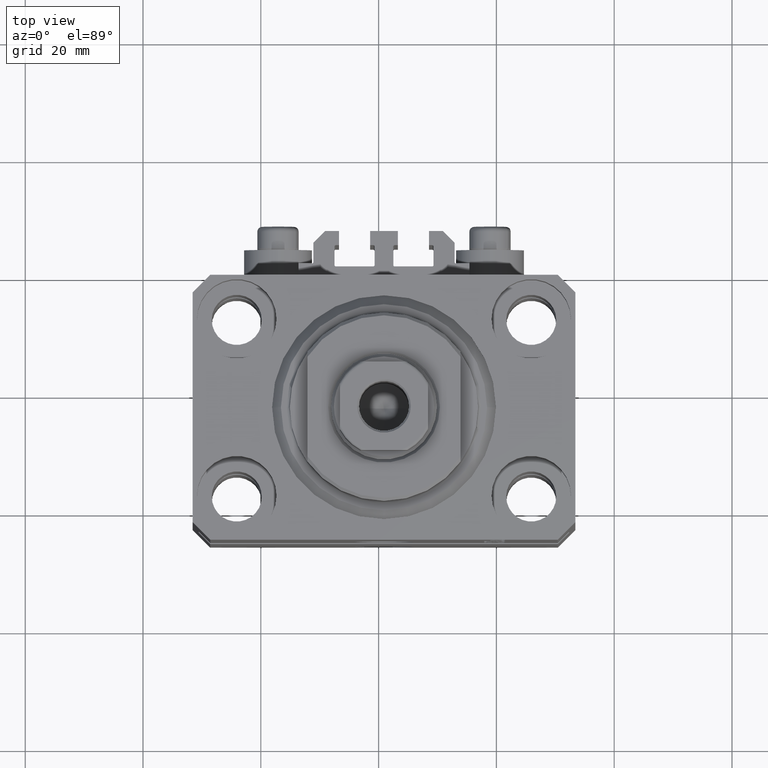
[diagram: clean part render]
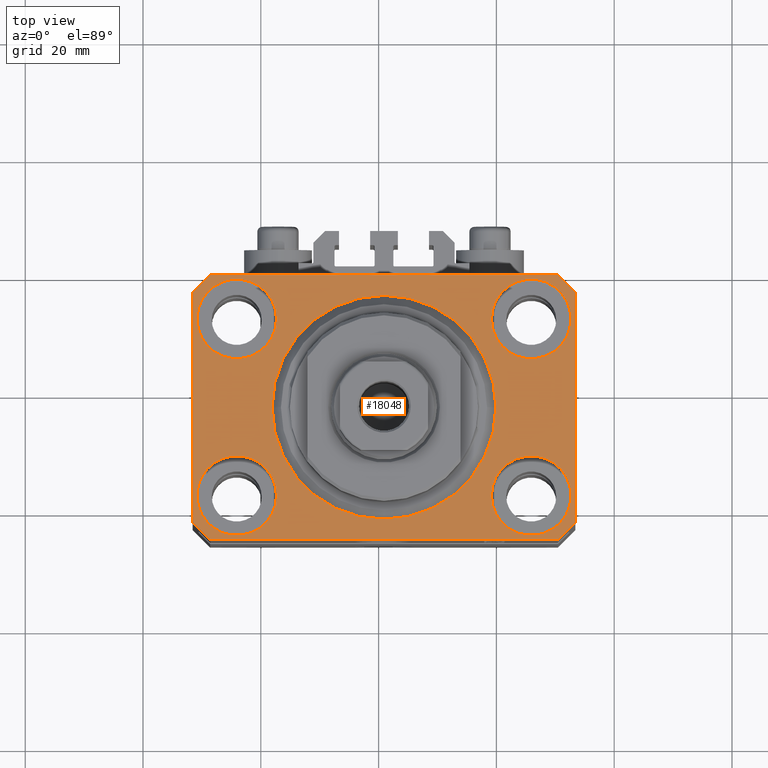
[diagram: same view with one face highlighted and labeled with its STEP entity id]
A machine part, top view. The second image highlights one B-rep face of the part: STEP entity #18048.
In plain terms, the highlighted planar face has unit normal (0, 0, 1).
Its self-contained STEP definition (entity closure, byte-faithful):
#32 = DIRECTION ( 'NONE',  ( 1.000000000000000000, 0.000000000000000000, 0.000000000000000000 ) ) ;
#367 = CARTESIAN_POINT ( 'NONE',  ( 29.49999999999707967, 22.49999999999951328, 0.000000000000000000 ) ) ;
#540 = ORIENTED_EDGE ( 'NONE', *, *, #32196, .T. ) ;
#601 = CARTESIAN_POINT ( 'NONE',  ( 19.00000000000000000, 0.000000000000000000, 0.000000000000000000 ) ) ;
#865 = EDGE_CURVE ( 'NONE', #3553, #43938, #35363, .T. ) ;
#1340 = VERTEX_POINT ( 'NONE', #7825 ) ;
#1629 = VERTEX_POINT ( 'NONE', #11112 ) ;
#2116 = VERTEX_POINT ( 'NONE', #29087 ) ;
#2663 = DIRECTION ( 'NONE',  ( 0.000000000000000000, -1.000000000000000000, 0.000000000000000000 ) ) ;
#2782 = DIRECTION ( 'NONE',  ( 1.000000000000000000, 0.000000000000000000, 0.000000000000000000 ) ) ;
#2968 = EDGE_CURVE ( 'NONE', #33075, #34157, #8736, .T. ) ;
#3211 = CARTESIAN_POINT ( 'NONE',  ( 29.49999999999650413, -22.49999999999949196, 0.000000000000000000 ) ) ;
#3477 = ORIENTED_EDGE ( 'NONE', *, *, #13586, .F. ) ;
#3553 = VERTEX_POINT ( 'NONE', #22976 ) ;
#3564 = CARTESIAN_POINT ( 'NONE',  ( -32.49999999999650413, -19.49999999999949907, 0.000000000000000000 ) ) ;
#4499 = VERTEX_POINT ( 'NONE', #22984 ) ;
#4962 = ORIENTED_EDGE ( 'NONE', *, *, #37915, .F. ) ;
#5008 = CIRCLE ( 'NONE', #42346, 6.750000000022533087 ) ;
#5142 = CIRCLE ( 'NONE', #41694, 6.749999999977465137 ) ;
#5403 = VERTEX_POINT ( 'NONE', #23043 ) ;
#5609 = VECTOR ( 'NONE', #2663, 1000.000000000000000 ) ;
#5690 = CIRCLE ( 'NONE', #31598, 19.00000000000000000 ) ;
#6157 = LINE ( 'NONE', #22946, #8437 ) ;
#6290 = CIRCLE ( 'NONE', #46705, 6.749999999958452790 ) ;
#6680 = VECTOR ( 'NONE', #20796, 1000.000000000000114 ) ;
#6725 = CARTESIAN_POINT ( 'NONE',  ( 29.49999999999650413, -22.49999999999949196, 0.000000000000000000 ) ) ;
#6874 = ORIENTED_EDGE ( 'NONE', *, *, #36098, .F. ) ;
#7216 = EDGE_CURVE ( 'NONE', #38874, #15450, #32822, .T. ) ;
#7422 = ORIENTED_EDGE ( 'NONE', *, *, #46067, .T. ) ;
#7825 = CARTESIAN_POINT ( 'NONE',  ( -31.75000000002253842, 15.00000000000000000, 0.000000000000000000 ) ) ;
#8437 = VECTOR ( 'NONE', #28109, 1000.000000000000000 ) ;
#8736 = CIRCLE ( 'NONE', #12555, 6.750000000041541881 ) ;
#8756 = DIRECTION ( 'NONE',  ( 0.000000000000000000, 0.000000000000000000, 1.000000000000000000 ) ) ;
#9658 = AXIS2_PLACEMENT_3D ( 'NONE', #11072, #17779, #25399 ) ;
#9745 = CARTESIAN_POINT ( 'NONE',  ( 32.49999999999651124, -19.49999999999949196, 0.000000000000000000 ) ) ;
#10374 = FACE_BOUND ( 'NONE', #46874, .T. ) ;
#10494 = AXIS2_PLACEMENT_3D ( 'NONE', #21839, #33297, #18019 ) ;
#10869 = DIRECTION ( 'NONE',  ( -1.000000000000000000, -2.352167425053553784E-16, 0.000000000000000000 ) ) ;
#11072 = CARTESIAN_POINT ( 'NONE',  ( 0.000000000000000000, 0.000000000000000000, 0.000000000000000000 ) ) ;
#11074 = ORIENTED_EDGE ( 'NONE', *, *, #7216, .T. ) ;
#11112 = CARTESIAN_POINT ( 'NONE',  ( 32.49999999999702993, 19.49999999999945999, 0.000000000000000000 ) ) ;
#11776 = CIRCLE ( 'NONE', #20190, 6.750000000041541881 ) ;
#11971 = ORIENTED_EDGE ( 'NONE', *, *, #43411, .F. ) ;
#12323 = EDGE_CURVE ( 'NONE', #1340, #37558, #5008, .T. ) ;
#12362 = ORIENTED_EDGE ( 'NONE', *, *, #865, .T. ) ;
#12555 = AXIS2_PLACEMENT_3D ( 'NONE', #27988, #31815, #39198 ) ;
#13251 = ORIENTED_EDGE ( 'NONE', *, *, #13440, .F. ) ;
#13405 = VECTOR ( 'NONE', #28749, 1000.000000000000000 ) ;
#13440 = EDGE_CURVE ( 'NONE', #34157, #33075, #11776, .T. ) ;
#13586 = EDGE_CURVE ( 'NONE', #2116, #33602, #5690, .T. ) ;
#13995 = CARTESIAN_POINT ( 'NONE',  ( 29.49999999999707967, 22.49999999999951328, 0.000000000000000000 ) ) ;
#14139 = AXIS2_PLACEMENT_3D ( 'NONE', #45763, #35959, #2782 ) ;
#14230 = DIRECTION ( 'NONE',  ( 0.000000000000000000, 0.000000000000000000, 1.000000000000000000 ) ) ;
#14541 = EDGE_LOOP ( 'NONE', ( #11971, #6874 ) ) ;
#14913 = ORIENTED_EDGE ( 'NONE', *, *, #42311, .F. ) ;
#15450 = VERTEX_POINT ( 'NONE', #9745 ) ;
#15936 = VECTOR ( 'NONE', #21031, 1000.000000000000000 ) ;
#16018 = CARTESIAN_POINT ( 'NONE',  ( -31.75000000004154899, -15.00000000000000000, 0.000000000000000000 ) ) ;
#16593 = CIRCLE ( 'NONE', #23453, 6.749999999977465137 ) ;
#16930 = ORIENTED_EDGE ( 'NONE', *, *, #42679, .T. ) ;
#17495 = CIRCLE ( 'NONE', #22051, 19.00000000000000000 ) ;
#17779 = DIRECTION ( 'NONE',  ( 0.000000000000000000, 0.000000000000000000, 1.000000000000000000 ) ) ;
#18019 = DIRECTION ( 'NONE',  ( 1.000000000000000000, 0.000000000000000000, 0.000000000000000000 ) ) ;
#18048 = ADVANCED_FACE ( 'NONE', ( #25643, #10374, #28984, #25881, #21602, #44011 ), #43763, .T. ) ;
#19783 = EDGE_CURVE ( 'NONE', #26775, #31788, #5142, .T. ) ;
#19938 = DIRECTION ( 'NONE',  ( 1.000000000000000000, 0.000000000000000000, 0.000000000000000000 ) ) ;
#20190 = AXIS2_PLACEMENT_3D ( 'NONE', #21414, #14230, #27854 ) ;
#20796 = DIRECTION ( 'NONE',  ( 0.7071067811865474617, -0.7071067811865474617, 0.000000000000000000 ) ) ;
#21031 = DIRECTION ( 'NONE',  ( 1.000000000000000000, 1.176083712526788232E-16, 0.000000000000000000 ) ) ;
#21414 = CARTESIAN_POINT ( 'NONE',  ( -25.00000000000000355, -15.00000000000000000, 0.000000000000000000 ) ) ;
#21602 = FACE_BOUND ( 'NONE', #42133, .T. ) ;
#21635 = LINE ( 'NONE', #13995, #45172 ) ;
#21839 = CARTESIAN_POINT ( 'NONE',  ( 24.99999999999999645, 15.00000000000000888, 0.000000000000000000 ) ) ;
#21872 = CARTESIAN_POINT ( 'NONE',  ( -29.49999999999650413, 22.49999999999949907, 0.000000000000000000 ) ) ;
#22051 = AXIS2_PLACEMENT_3D ( 'NONE', #45759, #8756, #41213 ) ;
#22108 = DIRECTION ( 'NONE',  ( 0.000000000000000000, 0.000000000000000000, 1.000000000000000000 ) ) ;
#22657 = DIRECTION ( 'NONE',  ( -0.7071067811865352493, 0.7071067811865597852, 0.000000000000000000 ) ) ;
#22701 = CIRCLE ( 'NONE', #10494, 6.749999999958452790 ) ;
#22946 = CARTESIAN_POINT ( 'NONE',  ( 32.49999999999651124, -19.49999999999949196, 0.000000000000000000 ) ) ;
#22976 = CARTESIAN_POINT ( 'NONE',  ( -32.49999999999650413, 19.49999999999949907, 0.000000000000000000 ) ) ;
#22984 = CARTESIAN_POINT ( 'NONE',  ( 18.25000000004154543, 15.00000000000000888, 0.000000000000000000 ) ) ;
#23043 = CARTESIAN_POINT ( 'NONE',  ( 31.74999999995845101, 15.00000000000000888, 0.000000000000000000 ) ) ;
#23072 = CARTESIAN_POINT ( 'NONE',  ( 18.25000000002253842, -15.00000000000000000, 0.000000000000000000 ) ) ;
#23453 = AXIS2_PLACEMENT_3D ( 'NONE', #24250, #31192, #45957 ) ;
#24250 = CARTESIAN_POINT ( 'NONE',  ( 25.00000000000000355, -15.00000000000000000, 0.000000000000000000 ) ) ;
#24440 = EDGE_CURVE ( 'NONE', #33602, #2116, #17495, .T. ) ;
#25399 = DIRECTION ( 'NONE',  ( 1.000000000000000000, 0.000000000000000000, -0.000000000000000000 ) ) ;
#25518 = CARTESIAN_POINT ( 'NONE',  ( 32.49999999999702993, 19.49999999999945999, 0.000000000000000000 ) ) ;
#25643 = FACE_BOUND ( 'NONE', #33392, .T. ) ;
#25843 = DIRECTION ( 'NONE',  ( 1.000000000000000000, 0.000000000000000000, 0.000000000000000000 ) ) ;
#25881 = FACE_BOUND ( 'NONE', #36525, .T. ) ;
#26775 = VERTEX_POINT ( 'NONE', #23072 ) ;
#27287 = ORIENTED_EDGE ( 'NONE', *, *, #19783, .F. ) ;
#27492 = VERTEX_POINT ( 'NONE', #35020 ) ;
#27615 = VERTEX_POINT ( 'NONE', #367 ) ;
#27854 = DIRECTION ( 'NONE',  ( 1.000000000000000000, 0.000000000000000000, 0.000000000000000000 ) ) ;
#27988 = CARTESIAN_POINT ( 'NONE',  ( -25.00000000000000355, -15.00000000000000000, 0.000000000000000000 ) ) ;
#28109 = DIRECTION ( 'NONE',  ( 1.334402673828349134E-14, 1.000000000000000000, 0.000000000000000000 ) ) ;
#28642 = LINE ( 'NONE', #43183, #15936 ) ;
#28749 = DIRECTION ( 'NONE',  ( 0.7071067811865483499, 0.7071067811865466846, 0.000000000000000000 ) ) ;
#28984 = FACE_BOUND ( 'NONE', #14541, .T. ) ;
#29087 = CARTESIAN_POINT ( 'NONE',  ( -19.00000000000000000, 2.326828918379970970E-15, 0.000000000000000000 ) ) ;
#29825 = ORIENTED_EDGE ( 'NONE', *, *, #2968, .F. ) ;
#30505 = EDGE_CURVE ( 'NONE', #46618, #3553, #36192, .T. ) ;
#30732 = CARTESIAN_POINT ( 'NONE',  ( -18.24999999995846167, -15.00000000000000000, 0.000000000000000000 ) ) ;
#31192 = DIRECTION ( 'NONE',  ( 0.000000000000000000, 0.000000000000000000, 1.000000000000000000 ) ) ;
#31598 = AXIS2_PLACEMENT_3D ( 'NONE', #40230, #22108, #40462 ) ;
#31640 = ORIENTED_EDGE ( 'NONE', *, *, #30505, .T. ) ;
#31788 = VERTEX_POINT ( 'NONE', #44006 ) ;
#31815 = DIRECTION ( 'NONE',  ( 0.000000000000000000, 0.000000000000000000, 1.000000000000000000 ) ) ;
#32196 = EDGE_CURVE ( 'NONE', #15450, #1629, #6157, .T. ) ;
#32448 = CIRCLE ( 'NONE', #14139, 6.750000000022533087 ) ;
#32822 = LINE ( 'NONE', #3211, #13405 ) ;
#33075 = VERTEX_POINT ( 'NONE', #16018 ) ;
#33297 = DIRECTION ( 'NONE',  ( 0.000000000000000000, 0.000000000000000000, 1.000000000000000000 ) ) ;
#33369 = VECTOR ( 'NONE', #22657, 1000.000000000000000 ) ;
#33392 = EDGE_LOOP ( 'NONE', ( #13251, #29825 ) ) ;
#33602 = VERTEX_POINT ( 'NONE', #601 ) ;
#34157 = VERTEX_POINT ( 'NONE', #30732 ) ;
#35020 = CARTESIAN_POINT ( 'NONE',  ( -29.49999999999650413, -22.49999999999949907, 0.000000000000000000 ) ) ;
#35363 = LINE ( 'NONE', #41818, #5609 ) ;
#35573 = EDGE_CURVE ( 'NONE', #27615, #46618, #21635, .T. ) ;
#35959 = DIRECTION ( 'NONE',  ( 0.000000000000000000, 0.000000000000000000, 1.000000000000000000 ) ) ;
#36070 = CARTESIAN_POINT ( 'NONE',  ( 24.99999999999999645, 15.00000000000000888, 0.000000000000000000 ) ) ;
#36098 = EDGE_CURVE ( 'NONE', #4499, #5403, #6290, .T. ) ;
#36105 = CARTESIAN_POINT ( 'NONE',  ( -32.49999999999650413, -19.49999999999949907, 0.000000000000000000 ) ) ;
#36192 = LINE ( 'NONE', #21872, #39655 ) ;
#36525 = EDGE_LOOP ( 'NONE', ( #4962, #45789 ) ) ;
#36748 = ORIENTED_EDGE ( 'NONE', *, *, #24440, .F. ) ;
#36765 = CARTESIAN_POINT ( 'NONE',  ( -18.24999999997747224, 15.00000000000000000, 0.000000000000000000 ) ) ;
#36807 = CARTESIAN_POINT ( 'NONE',  ( -29.49999999999650413, 22.49999999999949907, 0.000000000000000000 ) ) ;
#37558 = VERTEX_POINT ( 'NONE', #36765 ) ;
#37915 = EDGE_CURVE ( 'NONE', #37558, #1340, #32448, .T. ) ;
#38874 = VERTEX_POINT ( 'NONE', #6725 ) ;
#38999 = DIRECTION ( 'NONE',  ( 0.000000000000000000, 0.000000000000000000, 1.000000000000000000 ) ) ;
#39150 = LINE ( 'NONE', #3564, #6680 ) ;
#39198 = DIRECTION ( 'NONE',  ( 1.000000000000000000, 0.000000000000000000, 0.000000000000000000 ) ) ;
#39655 = VECTOR ( 'NONE', #46234, 1000.000000000000114 ) ;
#40074 = LINE ( 'NONE', #25518, #33369 ) ;
#40154 = DIRECTION ( 'NONE',  ( 0.000000000000000000, 0.000000000000000000, 1.000000000000000000 ) ) ;
#40230 = CARTESIAN_POINT ( 'NONE',  ( 0.000000000000000000, 0.000000000000000000, 0.000000000000000000 ) ) ;
#40462 = DIRECTION ( 'NONE',  ( 1.000000000000000000, 0.000000000000000000, 0.000000000000000000 ) ) ;
#40859 = CARTESIAN_POINT ( 'NONE',  ( 25.00000000000000355, -15.00000000000000000, 0.000000000000000000 ) ) ;
#41213 = DIRECTION ( 'NONE',  ( 1.000000000000000000, 0.000000000000000000, 0.000000000000000000 ) ) ;
#41694 = AXIS2_PLACEMENT_3D ( 'NONE', #40859, #40154, #25843 ) ;
#41818 = CARTESIAN_POINT ( 'NONE',  ( -32.49999999999650413, 19.49999999999949907, 0.000000000000000000 ) ) ;
#42044 = ORIENTED_EDGE ( 'NONE', *, *, #35573, .T. ) ;
#42133 = EDGE_LOOP ( 'NONE', ( #36748, #3477 ) ) ;
#42311 = EDGE_CURVE ( 'NONE', #31788, #26775, #16593, .T. ) ;
#42346 = AXIS2_PLACEMENT_3D ( 'NONE', #42569, #38999, #19938 ) ;
#42569 = CARTESIAN_POINT ( 'NONE',  ( -25.00000000000000355, 15.00000000000000000, 0.000000000000000000 ) ) ;
#42679 = EDGE_CURVE ( 'NONE', #43938, #27492, #39150, .T. ) ;
#42816 = EDGE_CURVE ( 'NONE', #1629, #27615, #40074, .T. ) ;
#43134 = ORIENTED_EDGE ( 'NONE', *, *, #42816, .T. ) ;
#43183 = CARTESIAN_POINT ( 'NONE',  ( -29.49999999999650413, -22.49999999999949907, 0.000000000000000000 ) ) ;
#43359 = EDGE_LOOP ( 'NONE', ( #42044, #31640, #12362, #16930, #7422, #11074, #540, #43134 ) ) ;
#43411 = EDGE_CURVE ( 'NONE', #5403, #4499, #22701, .T. ) ;
#43763 = PLANE ( 'NONE',  #9658 ) ;
#43938 = VERTEX_POINT ( 'NONE', #36105 ) ;
#44006 = CARTESIAN_POINT ( 'NONE',  ( 31.74999999997746869, -15.00000000000000000, 0.000000000000000000 ) ) ;
#44011 = FACE_OUTER_BOUND ( 'NONE', #43359, .T. ) ;
#45172 = VECTOR ( 'NONE', #10869, 1000.000000000000000 ) ;
#45759 = CARTESIAN_POINT ( 'NONE',  ( 0.000000000000000000, 0.000000000000000000, 0.000000000000000000 ) ) ;
#45763 = CARTESIAN_POINT ( 'NONE',  ( -25.00000000000000355, 15.00000000000000000, 0.000000000000000000 ) ) ;
#45789 = ORIENTED_EDGE ( 'NONE', *, *, #12323, .F. ) ;
#45957 = DIRECTION ( 'NONE',  ( 1.000000000000000000, 0.000000000000000000, 0.000000000000000000 ) ) ;
#46067 = EDGE_CURVE ( 'NONE', #27492, #38874, #28642, .T. ) ;
#46234 = DIRECTION ( 'NONE',  ( -0.7071067811865474617, -0.7071067811865474617, 0.000000000000000000 ) ) ;
#46348 = DIRECTION ( 'NONE',  ( 0.000000000000000000, 0.000000000000000000, 1.000000000000000000 ) ) ;
#46618 = VERTEX_POINT ( 'NONE', #36807 ) ;
#46705 = AXIS2_PLACEMENT_3D ( 'NONE', #36070, #46348, #32 ) ;
#46874 = EDGE_LOOP ( 'NONE', ( #14913, #27287 ) ) ;